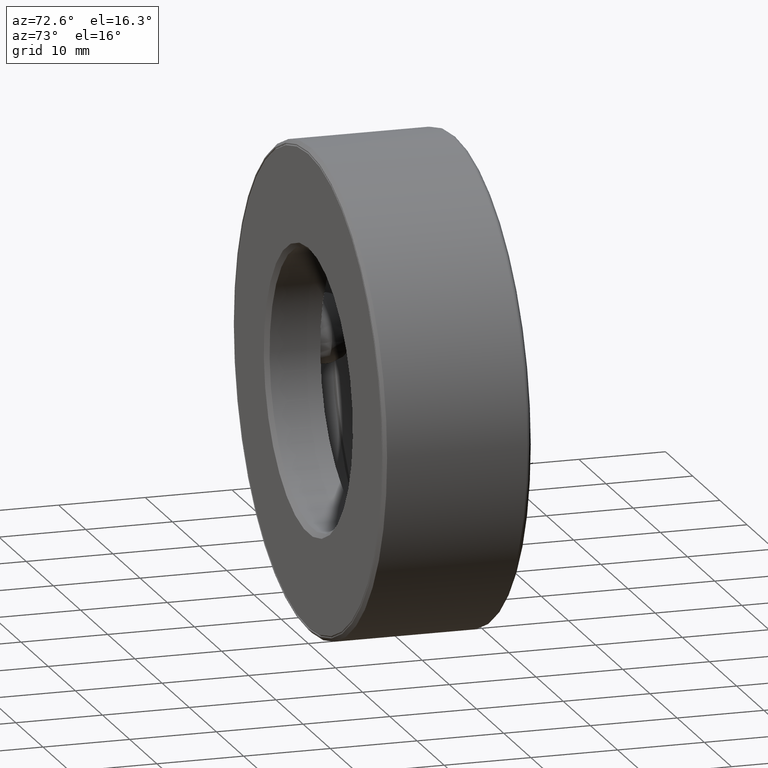
[diagram: clean part render]
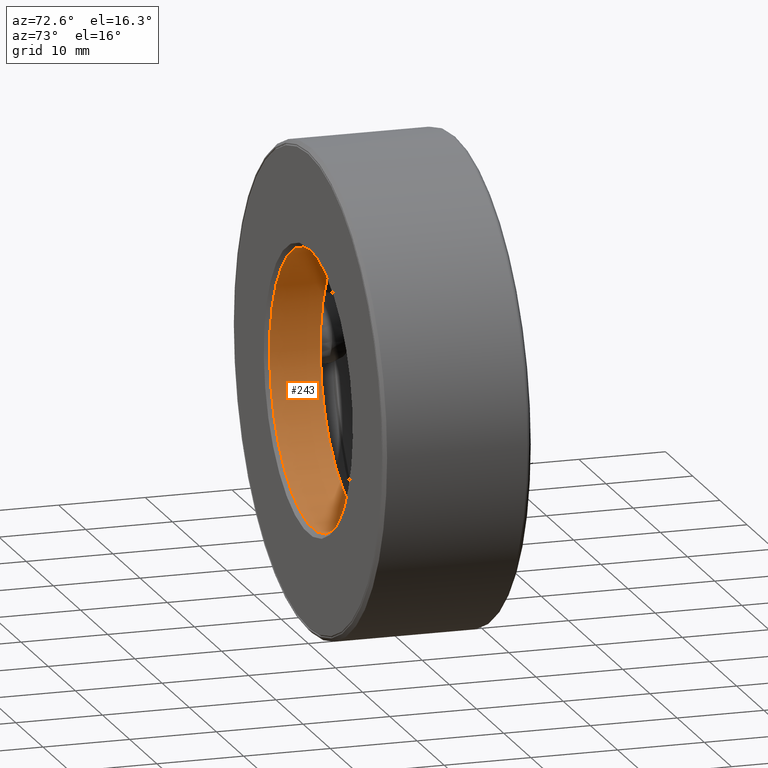
[diagram: same view with one face highlighted and labeled with its STEP entity id]
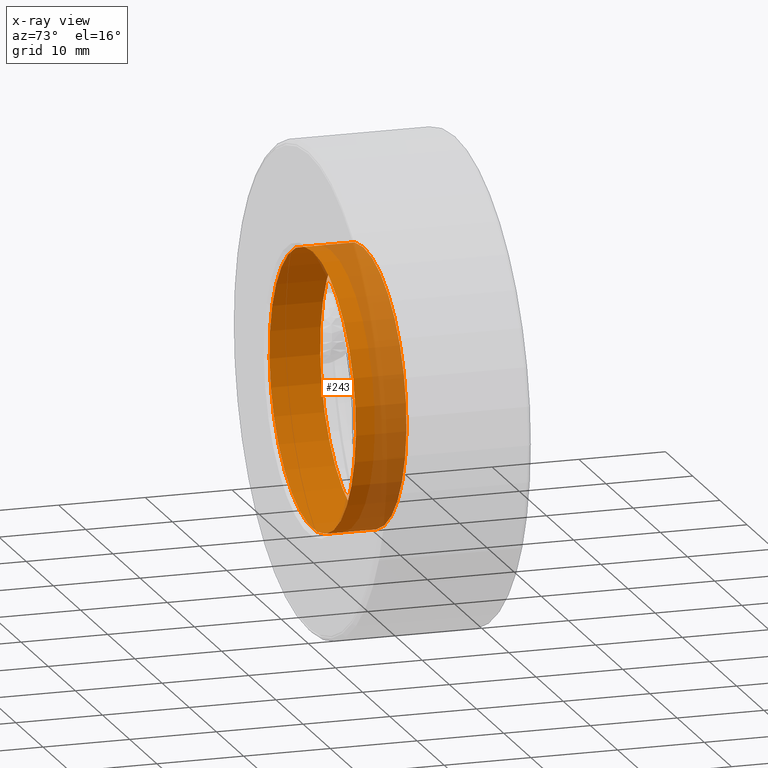
[diagram: x-ray of the same camera — body ghosted, the highlighted face saturated]
A machine part, auxiliary view. The second image highlights one B-rep face of the part: STEP entity #243.
The next image is the same camera in x-ray: the body ghosted, the highlighted face saturated — about 33% of this face is hidden behind the body in this view.
In plain terms, the highlighted cylindrical surface (bore or boss wall) has radius 15.875 mm, axis along (-0, 1, -0).
Its self-contained STEP definition (entity closure, byte-faithful):
#17 = FACE_OUTER_BOUND ( 'NONE', #438, .T. ) ;
#28 = DIRECTION ( 'NONE',  ( -0.0000000000000000000, 1.000000000000000000, -0.0000000000000000000 ) ) ;
#30 = CARTESIAN_POINT ( 'NONE',  ( 0.0000000000000000000, 0.0000000000000000000, 0.0000000000000000000 ) ) ;
#33 = ORIENTED_EDGE ( 'NONE', *, *, #56, .T. ) ;
#36 = DIRECTION ( 'NONE',  ( 0.0000000000000000000, 0.0000000000000000000, 1.000000000000000000 ) ) ;
#56 = EDGE_CURVE ( 'NONE', #250, #250, #549, .T. ) ;
#57 = CYLINDRICAL_SURFACE ( 'NONE', #163, 0.6250000000000000000 ) ;
#69 = CIRCLE ( 'NONE', #503, 0.6249999999999998900 ) ;
#163 = AXIS2_PLACEMENT_3D ( 'NONE', #30, #28, #553 ) ;
#174 = CARTESIAN_POINT ( 'NONE',  ( 0.0000000000000000000, 0.2500000000000001100, 0.6250000000000000000 ) ) ;
#180 = DIRECTION ( 'NONE',  ( -0.0000000000000000000, 1.000000000000000000, -0.0000000000000000000 ) ) ;
#228 = EDGE_LOOP ( 'NONE', ( #592 ) ) ;
#243 = ADVANCED_FACE ( 'NONE', ( #310, #17 ), #57, .F. ) ;
#250 = VERTEX_POINT ( 'NONE', #174 ) ;
#266 = CARTESIAN_POINT ( 'NONE',  ( 0.0000000000000000000, 0.02000000000000046900, 0.0000000000000000000 ) ) ;
#270 = DIRECTION ( 'NONE',  ( -0.0000000000000000000, 1.000000000000000000, -0.0000000000000000000 ) ) ;
#281 = EDGE_CURVE ( 'NONE', #355, #355, #69, .T. ) ;
#310 = FACE_OUTER_BOUND ( 'NONE', #228, .T. ) ;
#321 = AXIS2_PLACEMENT_3D ( 'NONE', #605, #180, #569 ) ;
#355 = VERTEX_POINT ( 'NONE', #472 ) ;
#438 = EDGE_LOOP ( 'NONE', ( #33 ) ) ;
#472 = CARTESIAN_POINT ( 'NONE',  ( 0.0000000000000000000, 0.02000000000000046900, 0.6249999999999998900 ) ) ;
#503 = AXIS2_PLACEMENT_3D ( 'NONE', #266, #270, #36 ) ;
#549 = CIRCLE ( 'NONE', #321, 0.6250000000000000000 ) ;
#553 = DIRECTION ( 'NONE',  ( 0.0000000000000000000, 0.0000000000000000000, 1.000000000000000000 ) ) ;
#569 = DIRECTION ( 'NONE',  ( 0.0000000000000000000, 0.0000000000000000000, 1.000000000000000000 ) ) ;
#592 = ORIENTED_EDGE ( 'NONE', *, *, #281, .F. ) ;
#605 = CARTESIAN_POINT ( 'NONE',  ( 0.0000000000000000000, 0.2500000000000001100, 0.0000000000000000000 ) ) ;